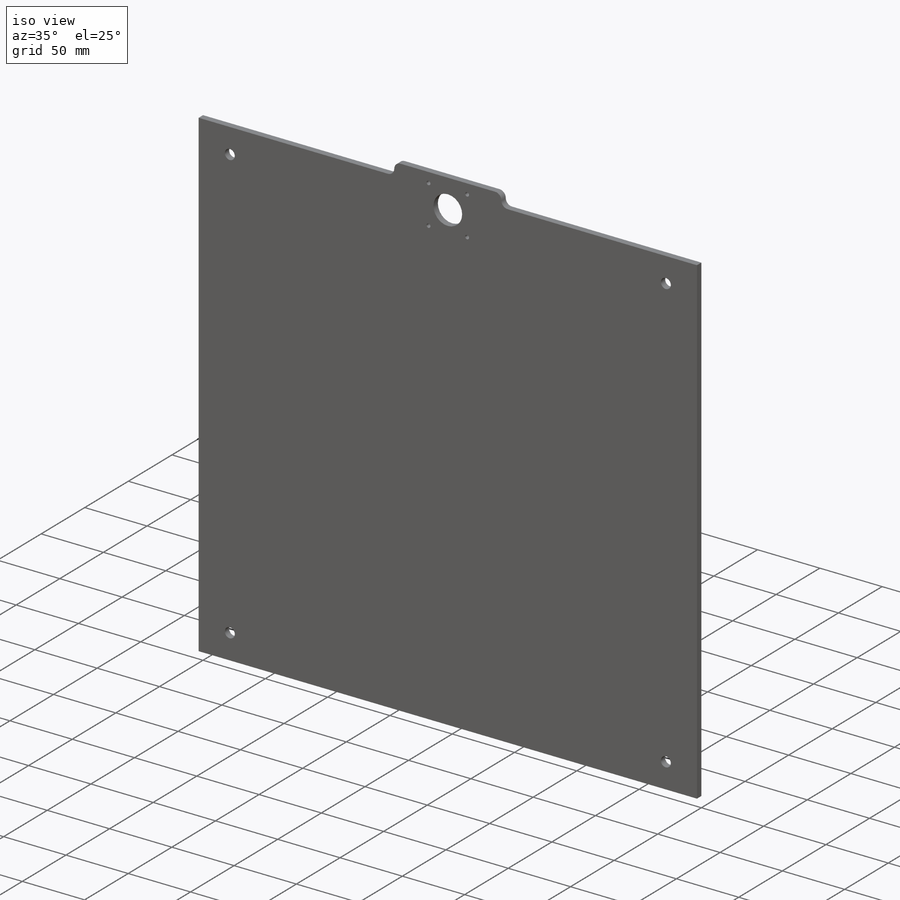
[diagram: iso view]
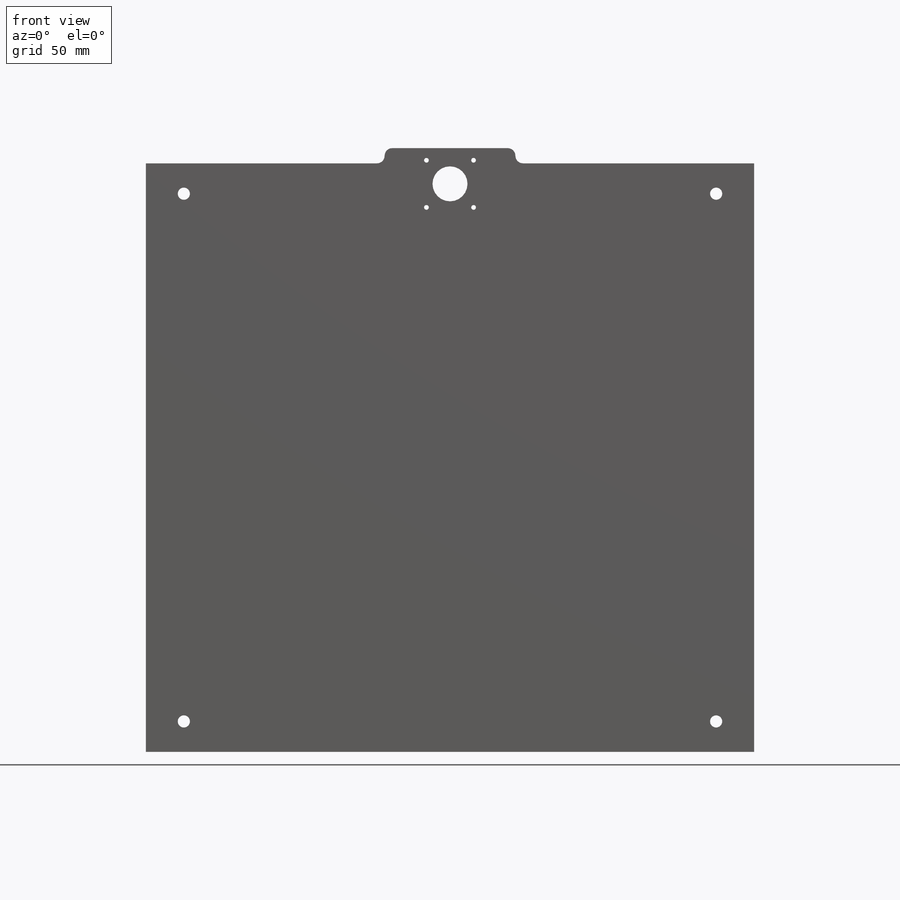
[diagram: front view]
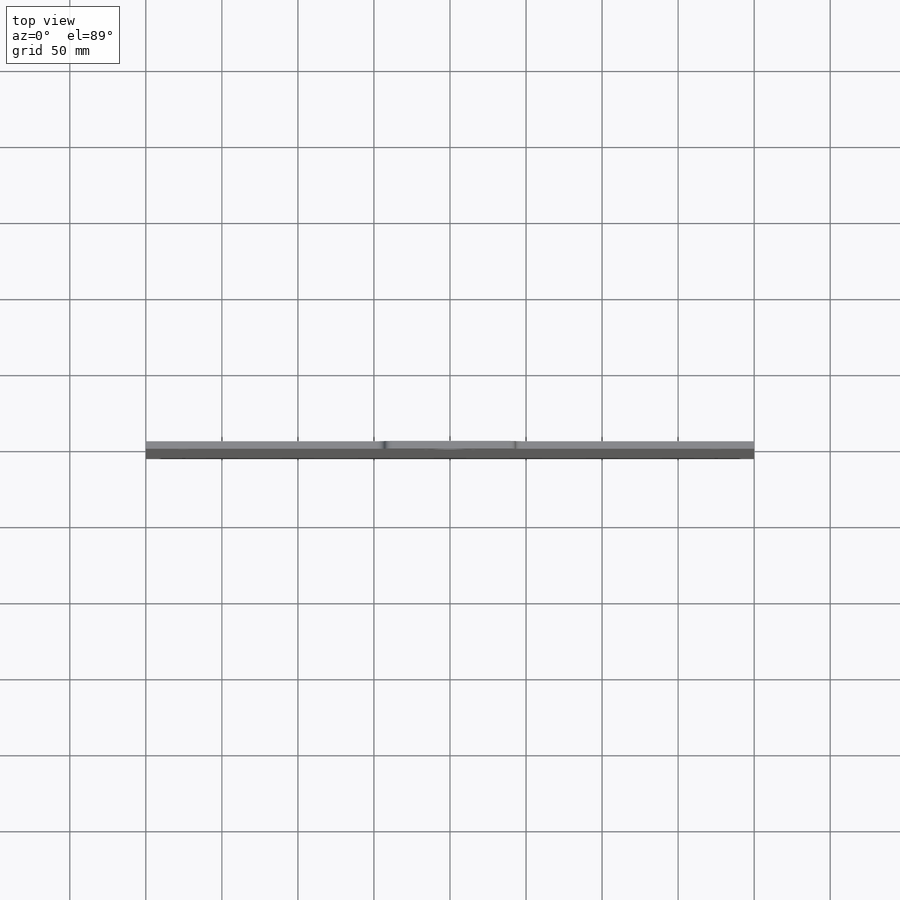
[diagram: top view]
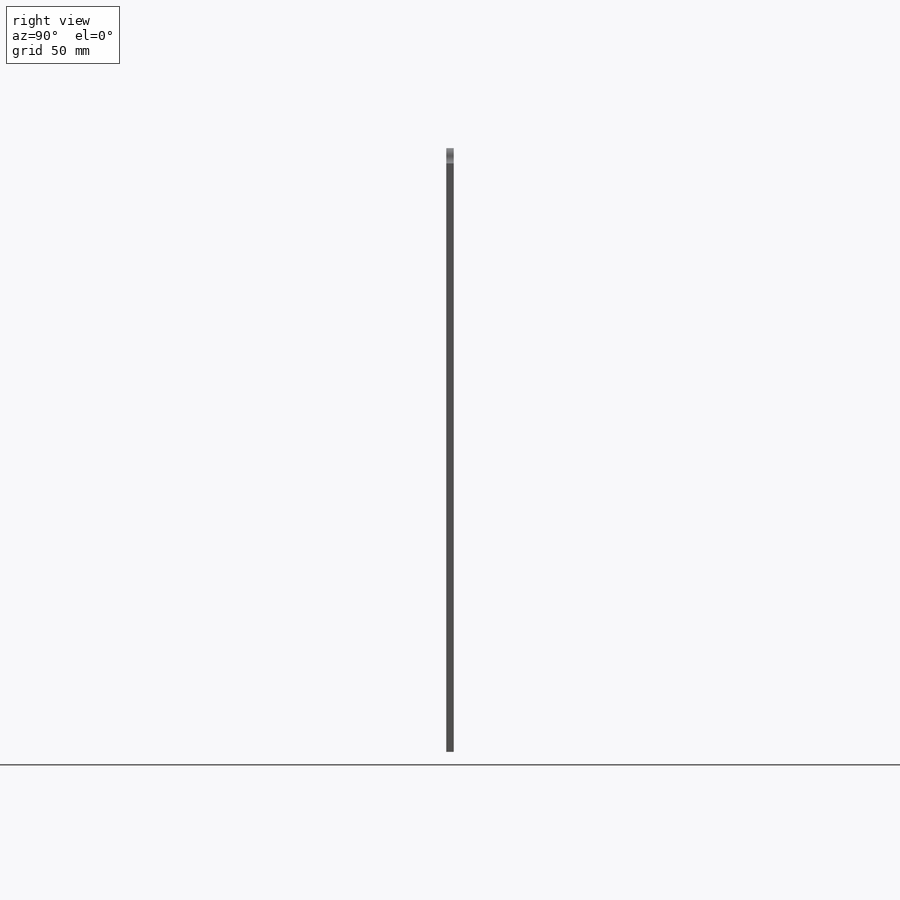
[diagram: right view]
SOLIDWORKS PART (.sldprt)
format: sldprt  version: not decoded by parser v0  size: 279,040 bytes
history: native  units: mm
features: sketch x5, plane x4, cut_extrude x4, fillet x2, material x1, extrude x1 (+9 scaffold rows collapsed)
feature tree (26):
  scaffold x9  (default folders/planes/origin — collapsed)
  material  "Material <not specified>"
  plane  "Plan de face"
  plane  "Plan de dessus"
  plane  "Plan de droite"
  sketch  "Sketch1"  dims[D1=400.0mm D2=397.0mm]
  extrude  "Boss-Extrude1"  Depth=5mm
  sketch  "Sketch2"  dims[D1=3.1mm D2=3.1mm D6=3.1mm D3=31.0mm D4=15.5mm D5=8.0mm]
  cut_extrude  "Cut-Extrude1"  [1 undecoded]
  sketch  "Sketch3"  dims[D1=23.0mm]
  cut_extrude  "Cut-Extrude2"  [1 undecoded]
  sketch  "Sketch4"  dims[c1.D1=5.0mm c1.D2=0.0mm c1.D3=157.0mm c2.D1=10.0mm]
  cut_extrude  "Cut-Extrude3"  [1 undecoded]
  plane  "Plane1"
  fillet  "Fillet1"  Radius=5mm
  fillet  "Fillet2"  Radius=5mm
  sketch  "Sketch5"  dims[D2=8.0mm D5=8.0mm D1=25.0mm D3=19.97mm D4=25.0mm D6=20.03mm]
  cut_extrude  "Cut-Extrude4"  [1 undecoded]
decode coverage: 8 of 12 modeling features carry decoded parameters
note: 4 parameter values undecoded
summary: no parameter record found for 4 features
note: suppression state not decoded; provenance and decode notes live in map.json
